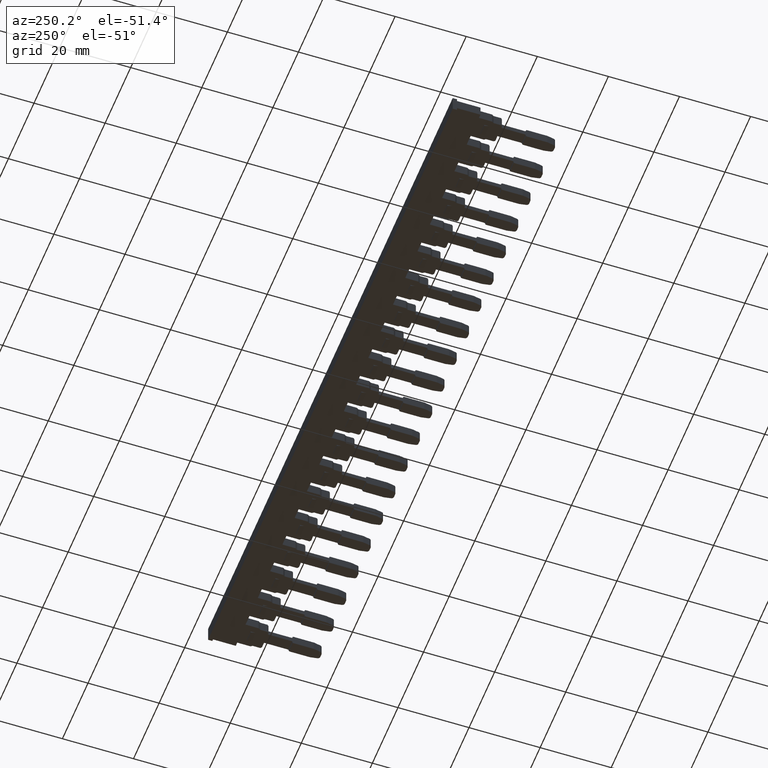
[diagram: clean part render]
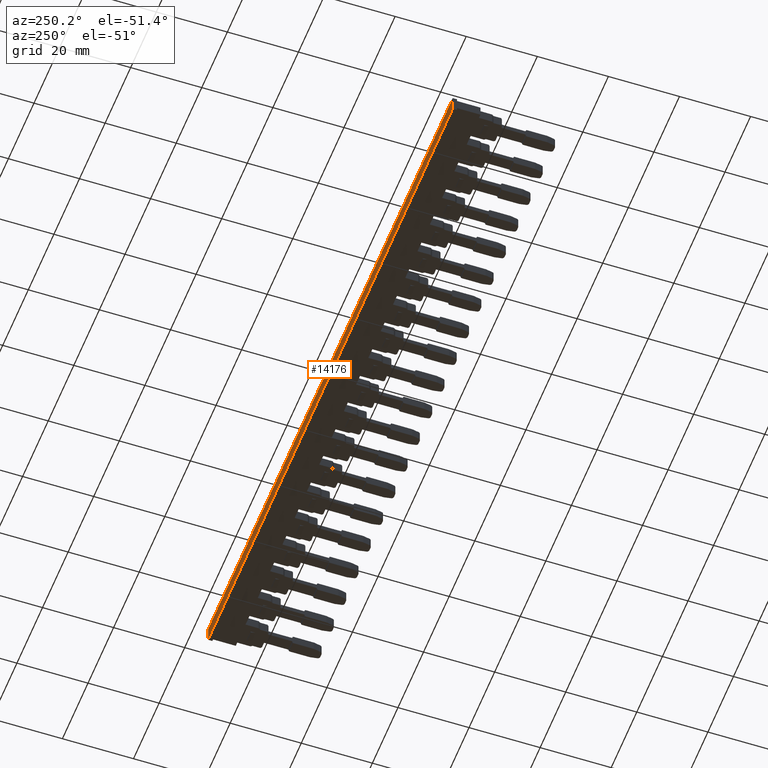
[diagram: same view with one face highlighted and labeled with its STEP entity id]
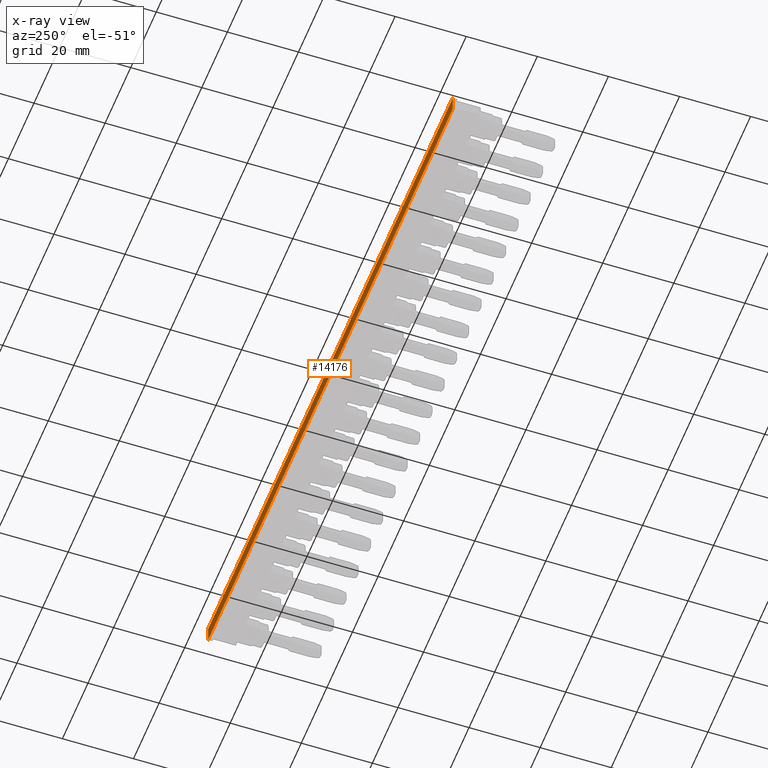
[diagram: x-ray of the same camera — body ghosted, the highlighted face saturated]
A machine part, auxiliary view. The second image highlights one B-rep face of the part: STEP entity #14176.
The next image is the same camera in x-ray: the body ghosted, the highlighted face saturated — about 0% of this face is hidden behind the body in this view.
In plain terms, the highlighted planar face has unit normal (0, -1, 0).
Its self-contained STEP definition (entity closure, byte-faithful):
#81 = VECTOR ( 'NONE', #15215, 1000.000000000000000 ) ;
#107 = VECTOR ( 'NONE', #15140, 1000.000000000000000 ) ;
#112 = VECTOR ( 'NONE', #15191, 1000.000000000000000 ) ;
#133 = VECTOR ( 'NONE', #15267, 1000.000000000000000 ) ;
#2506 = ORIENTED_EDGE ( 'NONE', *, *, #12946, .F. ) ;
#2586 = ORIENTED_EDGE ( 'NONE', *, *, #13012, .T. ) ;
#2589 = ORIENTED_EDGE ( 'NONE', *, *, #12921, .T. ) ;
#2600 = ORIENTED_EDGE ( 'NONE', *, *, #12993, .F. ) ;
#6033 = VERTEX_POINT ( 'NONE', #11100 ) ;
#6045 = VERTEX_POINT ( 'NONE', #11172 ) ;
#6133 = VERTEX_POINT ( 'NONE', #11179 ) ;
#6155 = VERTEX_POINT ( 'NONE', #11271 ) ;
#11100 = CARTESIAN_POINT ( 'NONE',  ( 966.3944708023301500, 674.2878760720548100, -0.7499999999999997800 ) ) ;
#11172 = CARTESIAN_POINT ( 'NONE',  ( 1157.594465032600300, 674.2878760720548100, -0.7499999999999997800 ) ) ;
#11179 = CARTESIAN_POINT ( 'NONE',  ( 1157.594465032600300, 674.2878760720548100, 3.750000000000000000 ) ) ;
#11271 = CARTESIAN_POINT ( 'NONE',  ( 966.3944708023301500, 674.2878760720548100, 3.750000000000000000 ) ) ;
#12921 = EDGE_CURVE ( 'NONE', #6033, #6155, #15134, .T. ) ;
#12946 = EDGE_CURVE ( 'NONE', #6033, #6045, #15188, .T. ) ;
#12993 = EDGE_CURVE ( 'NONE', #6133, #6155, #15213, .T. ) ;
#13012 = EDGE_CURVE ( 'NONE', #6133, #6045, #15245, .T. ) ;
#14176 = ADVANCED_FACE ( 'NONE', ( #19208 ), #19245, .F. ) ;
#15127 = CARTESIAN_POINT ( 'NONE',  ( 966.3944708023301500, 674.2878760720548100, 3.000000000000000000 ) ) ;
#15134 = LINE ( 'NONE', #15127, #107 ) ;
#15140 = DIRECTION ( 'NONE',  ( -0.0000000000000000000, -0.0000000000000000000, 1.000000000000000000 ) ) ;
#15184 = CARTESIAN_POINT ( 'NONE',  ( 1129.594470802330100, 674.2878760720548100, -0.7499999999999997800 ) ) ;
#15188 = LINE ( 'NONE', #15184, #112 ) ;
#15191 = DIRECTION ( 'NONE',  ( 1.000000000000000000, 0.0000000000000000000, 0.0000000000000000000 ) ) ;
#15199 = CARTESIAN_POINT ( 'NONE',  ( 1129.594470802330100, 674.2878760720548100, 3.750000000000000000 ) ) ;
#15213 = LINE ( 'NONE', #15199, #81 ) ;
#15215 = DIRECTION ( 'NONE',  ( -1.000000000000000000, -0.0000000000000000000, -0.0000000000000000000 ) ) ;
#15245 = LINE ( 'NONE', #15252, #133 ) ;
#15252 = CARTESIAN_POINT ( 'NONE',  ( 1157.594465032600300, 674.2878760720548100, 3.000000000000000000 ) ) ;
#15267 = DIRECTION ( 'NONE',  ( -0.0000000000000000000, -0.0000000000000000000, -1.000000000000000000 ) ) ;
#19208 = FACE_OUTER_BOUND ( 'NONE', #24843, .T. ) ;
#19216 = DIRECTION ( 'NONE',  ( 0.0000000000000000000, -0.0000000000000000000, -1.000000000000000000 ) ) ;
#19233 = CARTESIAN_POINT ( 'NONE',  ( 1129.594470802330100, 674.2878760720548100, 3.000000000000000000 ) ) ;
#19245 = PLANE ( 'NONE',  #24279 ) ;
#19248 = DIRECTION ( 'NONE',  ( 0.0000000000000000000, -1.000000000000000000, 0.0000000000000000000 ) ) ;
#24279 = AXIS2_PLACEMENT_3D ( 'NONE', #19233, #19248, #19216 ) ;
#24843 = EDGE_LOOP ( 'NONE', ( #2586, #2506, #2589, #2600 ) ) ;